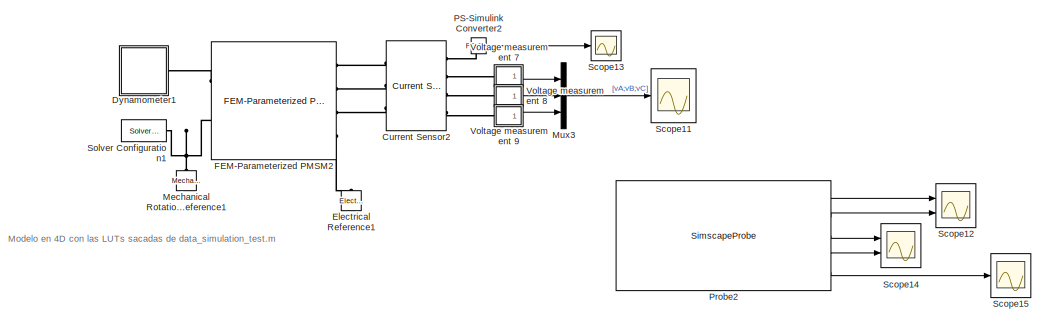
[diagram: root canvas - part 1/2, top right region]
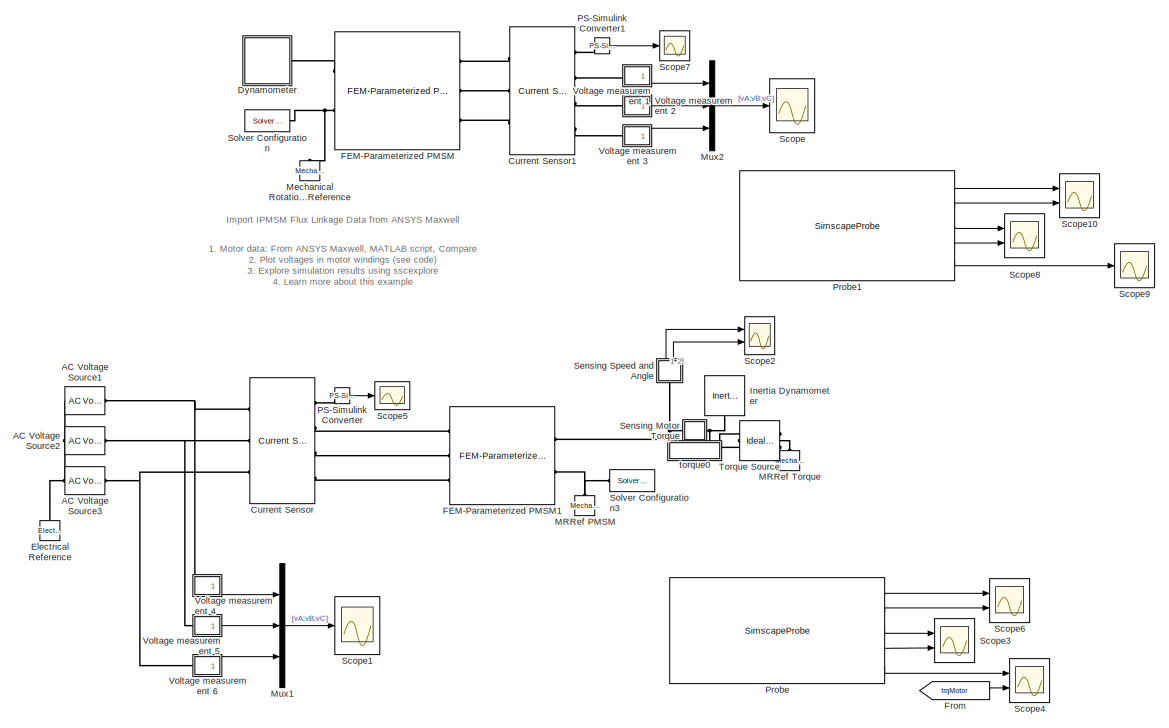
[diagram: root canvas - part 2/2, left side, full height]
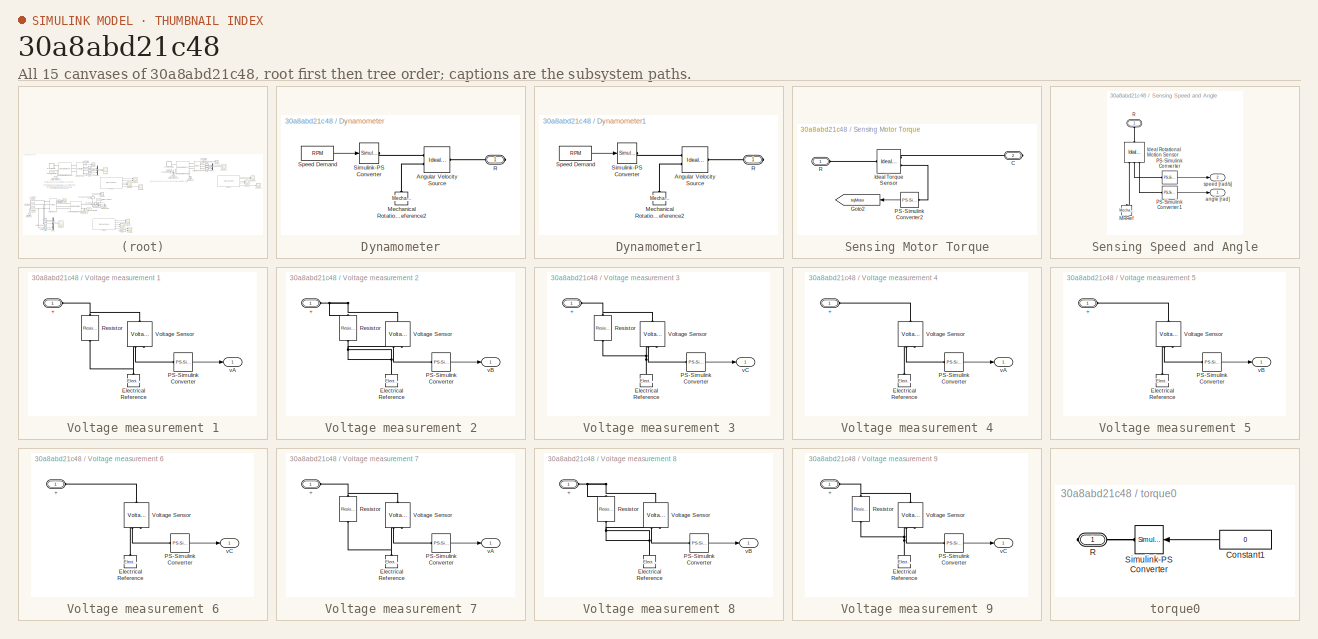
[diagram: thumbnail index - all 15 canvases of the model, root first then tree order]
MODEL slx_30a8abd21c48
KIND model
CONFIG AbsTol = 1e-3
CONFIG EnableMultiTasking = off
CONFIG FixedStep = auto
CONFIG MaxStep = auto
CONFIG MinStep = auto
CONFIG PreLoadFcn = % Load flux linkage data\nee_ece_table\nRPM = 7200;\nRload = 1e6;
CONFIG RelTol = 1e-3
CONFIG SampleTimeConstraint = Unconstrained
CONFIG SolverName = VariableStepAuto
CONFIG StartTime = 0.0
CONFIG StopFcn = ee_addSimlogTimeStamp(bdroot)
CONFIG StopTime = 0.01
BLOCK [Reference] AC Voltage Source1  REF=fl_lib/Electrical/Electrical Sources/AC Voltage Source
  Commented = on
  Ports = [0, 0, 0, 0, 0, 1, 1]
  SourceBlock = fl_lib/Electrical/Electrical Sources/AC Voltage Source
  SourceProductBaseCode = SS
  SourceType = AC Voltage Source
BLOCK [Reference] AC Voltage Source2  REF=fl_lib/Electrical/Electrical Sources/AC Voltage Source
  Commented = on
  Ports = [0, 0, 0, 0, 0, 1, 1]
  SourceBlock = fl_lib/Electrical/Electrical Sources/AC Voltage Source
  SourceProductBaseCode = SS
  SourceType = AC Voltage Source
BLOCK [Reference] AC Voltage Source3  REF=fl_lib/Electrical/Electrical Sources/AC Voltage Source
  Commented = on
  Ports = [0, 0, 0, 0, 0, 1, 1]
  SourceBlock = fl_lib/Electrical/Electrical Sources/AC Voltage Source
  SourceProductBaseCode = SS
  SourceType = AC Voltage Source
BLOCK [Reference] Current Sensor  REF=ee_lib/Sensors &
Transducers/Current Sensor
(Three-Phase)
  Commented = on
  Ports = [0, 0, 0, 0, 0, 3, 4]
  SourceBlock = ee_lib/Sensors &\nTransducers/Current Sensor\n(Three-Phase)
  SourceProductBaseCode = PS
  SourceType = Current Sensor\n(Three-Phase)
BLOCK [Reference] Current Sensor1  REF=ee_lib/Sensors &
Transducers/Current Sensor
(Three-Phase)
  Ports = [0, 0, 0, 0, 0, 3, 4]
  SourceBlock = ee_lib/Sensors &\nTransducers/Current Sensor\n(Three-Phase)
  SourceProductBaseCode = PS
  SourceType = Current Sensor\n(Three-Phase)
BLOCK [Reference] Current Sensor2  REF=ee_lib/Sensors &
Transducers/Current Sensor
(Three-Phase)
  Commented = on
  Ports = [0, 0, 0, 0, 0, 3, 4]
  SourceBlock = ee_lib/Sensors &\nTransducers/Current Sensor\n(Three-Phase)
  SourceProductBaseCode = PS
  SourceType = Current Sensor\n(Three-Phase)
BLOCK [SubSystem] Dynamometer
  Ports = [0, 0, 0, 0, 0, 0, 1]
  RequestExecContextInheritance = off
BLOCK [Reference] Dynamometer/Angular Velocity Source  REF=fl_lib/Mechanical/Mechanical Sources/Ideal Angular
Velocity Source
  Ports = [0, 0, 0, 0, 0, 1, 2]
  SourceBlock = fl_lib/Mechanical/Mechanical Sources/Ideal Angular\nVelocity Source
  SourceProductBaseCode = SS
  SourceType = Ideal Angular\nVelocity Source
BLOCK [Reference] Dynamometer/Mechanical Rotational Reference2  REF=fl_lib/Mechanical/Rotational Elements/Mechanical
Rotational Reference
  NameLocation = right
  Ports = [0, 0, 0, 0, 0, 1]
  SourceBlock = fl_lib/Mechanical/Rotational Elements/Mechanical\nRotational Reference
  SourceProductBaseCode = SS
  SourceType = Mechanical\nRotational Reference
BLOCK [PMIOPort] Dynamometer/R
  Side = Right
BLOCK [Reference] Dynamometer/Simulink-PS Converter  REF=nesl_utility/Simulink-PS
Converter
  NameLocation = top
  Ports = [1, 0, 0, 0, 0, 0, 1]
  SourceBlock = nesl_utility/Simulink-PS\nConverter
  SourceProductBaseCode = PW,SS
  SourceType = Simulink-PS\nConverter
BLOCK [Constant] Dynamometer/Speed Demand
  Value = RPM
BLOCK [SubSystem] Dynamometer1
  Commented = on
  Ports = [0, 0, 0, 0, 0, 0, 1]
  RequestExecContextInheritance = off
BLOCK [Reference] Dynamometer1/Angular Velocity Source  REF=fl_lib/Mechanical/Mechanical Sources/Ideal Angular
Velocity Source
  Ports = [0, 0, 0, 0, 0, 1, 2]
  SourceBlock = fl_lib/Mechanical/Mechanical Sources/Ideal Angular\nVelocity Source
  SourceProductBaseCode = SS
  SourceType = Ideal Angular\nVelocity Source
BLOCK [Reference] Dynamometer1/Mechanical Rotational Reference2  REF=fl_lib/Mechanical/Rotational Elements/Mechanical
Rotational Reference
  NameLocation = right
  Ports = [0, 0, 0, 0, 0, 1]
  SourceBlock = fl_lib/Mechanical/Rotational Elements/Mechanical\nRotational Reference
  SourceProductBaseCode = SS
  SourceType = Mechanical\nRotational Reference
BLOCK [PMIOPort] Dynamometer1/R
  Side = Right
BLOCK [Reference] Dynamometer1/Simulink-PS Converter  REF=nesl_utility/Simulink-PS
Converter
  NameLocation = top
  Ports = [1, 0, 0, 0, 0, 0, 1]
  SourceBlock = nesl_utility/Simulink-PS\nConverter
  SourceProductBaseCode = PW,SS
  SourceType = Simulink-PS\nConverter
BLOCK [Constant] Dynamometer1/Speed Demand
  Value = RPM
BLOCK [Reference] Electrical Reference  REF=fl_lib/Electrical/Electrical Elements/Electrical Reference
  Commented = on
  NameLocation = right
  Ports = [0, 0, 0, 0, 0, 1]
  SourceBlock = fl_lib/Electrical/Electrical Elements/Electrical Reference
  SourceProductBaseCode = SS
  SourceType = Electrical Reference
BLOCK [Reference] Electrical Reference1  REF=fl_lib/Electrical/Electrical Elements/Electrical Reference
  Commented = on
  NameLocation = right
  Ports = [0, 0, 0, 0, 0, 1]
  SourceBlock = fl_lib/Electrical/Electrical Elements/Electrical Reference
  SourceProductBaseCode = SS
  SourceType = Electrical Reference
BLOCK [Reference] FEM-Parameterized PMSM  REF=ee_lib/Electromechanical/Permanent Magnet/FEM-Parameterized
PMSM
  Ports = [0, 0, 0, 0, 0, 3, 2]
  SourceBlock = ee_lib/Electromechanical/Permanent Magnet/FEM-Parameterized\nPMSM
  SourceProductBaseCode = PS
  SourceType = FEM-Parameterized\nPMSM
BLOCK [Reference] FEM-Parameterized PMSM1  REF=ee_lib/Electromechanical/Permanent Magnet/FEM-Parameterized
PMSM
  Commented = on
  Ports = [0, 0, 0, 0, 0, 3, 2]
  SourceBlock = ee_lib/Electromechanical/Permanent Magnet/FEM-Parameterized\nPMSM
  SourceProductBaseCode = PS
  SourceType = FEM-Parameterized\nPMSM
BLOCK [Reference] FEM-Parameterized PMSM2  REF=ee_lib/Electromechanical/Permanent Magnet/FEM-Parameterized
PMSM
  Commented = on
  Ports = [0, 0, 0, 0, 0, 4, 2]
  SourceBlock = ee_lib/Electromechanical/Permanent Magnet/FEM-Parameterized\nPMSM
  SourceProductBaseCode = PS
  SourceType = FEM-Parameterized\nPMSM
BLOCK [From] From
  Commented = on
  GotoTag = trqMotor
  TagVisibility = global
BLOCK [Reference] Inertia Dynamometer  REF=fl_lib/Mechanical/Rotational Elements/Inertia
  Commented = on
  NameLocation = right
  Ports = [0, 0, 0, 0, 0, 1]
  SourceBlock = fl_lib/Mechanical/Rotational Elements/Inertia
  SourceProductBaseCode = SS
  SourceType = Inertia
BLOCK [Reference] MRRef PMSM  REF=fl_lib/Mechanical/Rotational Elements/Mechanical
Rotational Reference
  Commented = on
  NameLocation = left
  Ports = [0, 0, 0, 0, 0, 1]
  SourceBlock = fl_lib/Mechanical/Rotational Elements/Mechanical\nRotational Reference
  SourceProductBaseCode = SS
  SourceType = Mechanical\nRotational Reference
BLOCK [Reference] MRRef Torque  REF=fl_lib/Mechanical/Rotational Elements/Mechanical
Rotational Reference
  Commented = on
  NameLocation = right
  Ports = [0, 0, 0, 0, 0, 1]
  SourceBlock = fl_lib/Mechanical/Rotational Elements/Mechanical\nRotational Reference
  SourceProductBaseCode = SS
  SourceType = Mechanical\nRotational Reference
BLOCK [Reference] Mechanical Rotational Reference  REF=fl_lib/Mechanical/Rotational Elements/Mechanical
Rotational Reference
  NameLocation = right
  Ports = [0, 0, 0, 0, 0, 1]
  SourceBlock = fl_lib/Mechanical/Rotational Elements/Mechanical\nRotational Reference
  SourceProductBaseCode = SS
  SourceType = Mechanical\nRotational Reference
BLOCK [Reference] Mechanical Rotational Reference1  REF=fl_lib/Mechanical/Rotational Elements/Mechanical
Rotational Reference
  Commented = on
  NameLocation = right
  Ports = [0, 0, 0, 0, 0, 1]
  SourceBlock = fl_lib/Mechanical/Rotational Elements/Mechanical\nRotational Reference
  SourceProductBaseCode = SS
  SourceType = Mechanical\nRotational Reference
BLOCK [Mux] Mux1
  Commented = on
  DisplayOption = bar
  Inputs = 3
  Ports = [3, 1]
BLOCK [Mux] Mux2
  DisplayOption = bar
  Inputs = 3
  Ports = [3, 1]
BLOCK [Mux] Mux3
  Commented = on
  DisplayOption = bar
  Inputs = 3
  Ports = [3, 1]
BLOCK [Reference] PS-Simulink Converter  REF=nesl_utility/PS-Simulink
Converter
  Commented = on
  Ports = [0, 1, 0, 0, 0, 1]
  SourceBlock = nesl_utility/PS-Simulink\nConverter
  SourceProductBaseCode = PW,SS
  SourceType = PS-Simulink\nConverter
BLOCK [Reference] PS-Simulink Converter1  REF=nesl_utility/PS-Simulink
Converter
  Ports = [0, 1, 0, 0, 0, 1]
  SourceBlock = nesl_utility/PS-Simulink\nConverter
  SourceProductBaseCode = PW,SS
  SourceType = PS-Simulink\nConverter
BLOCK [Reference] PS-Simulink Converter2  REF=nesl_utility/PS-Simulink
Converter
  Commented = on
  Ports = [0, 1, 0, 0, 0, 1]
  SourceBlock = nesl_utility/PS-Simulink\nConverter
  SourceProductBaseCode = PW,SS
  SourceType = PS-Simulink\nConverter
BLOCK [SimscapeProbe] Probe
  BoundBlock = 144
  Commented = on
  Ports = [0, 5]
  Variables = {angular_position, angular_velocity, i_d, i_q, torque}
BLOCK [SimscapeProbe] Probe1
  BoundBlock = 1
  Ports = [0, 5]
  Variables = {angular_position, angular_velocity, i_d, i_q, torque}
BLOCK [SimscapeProbe] Probe2
  BoundBlock = 266
  Commented = on
  Ports = [0, 5]
  Variables = {angular_position, angular_velocity, i_d, i_q, torque}
BLOCK [Scope] Scope
  Floating = off
  NumInputPorts = 1
  Ports = [1]
  ScopeSpecificationString = Simulink.scopes.TimeScopeBlockCfg('CurrentConfiguration', extmgr.ConfigurationSet(extmgr.Configuration('Core','General UI',true),extmgr.Configuration('Core','Source UI',true),extmgr.Configuration('Sources','WiredSimulink',true,'DataLogging',true,'DataLoggingVariableName','phase_voltages','DataLoggingSaveFormat','StructureWithTime'),extmgr.Configuration('Visuals','Time Domain',true,'SerializedDispl...<+1624ch>
BLOCK [Scope] Scope1
  Commented = on
  Floating = off
  NumInputPorts = 1
  Ports = [1]
  ScopeSpecificationString = Simulink.scopes.TimeScopeBlockCfg('CurrentConfiguration', extmgr.ConfigurationSet(extmgr.Configuration('Core','General UI',true),extmgr.Configuration('Core','Source UI',true),extmgr.Configuration('Sources','WiredSimulink',true,'DataLoggingVariableName','ScopeData1'),extmgr.Configuration('Visuals','Time Domain',true,'SerializedDisplays',{struct('MinYLimReal','-125.00000','MaxYLimReal','125.00000','...<+1911ch>
BLOCK [Scope] Scope10
  Floating = off
  NumInputPorts = 2
  Ports = [2]
  ScopeSpecificationString = Simulink.scopes.TimeScopeBlockCfg('CurrentConfiguration', extmgr.ConfigurationSet(extmgr.Configuration('Core','General UI',true),extmgr.Configuration('Core','Source UI',true),extmgr.Configuration('Sources','WiredSimulink',true,'DataLoggingVariableName','angr_speedr','DataLogging',true,'DataLoggingSaveFormat','StructureWithTime'),extmgr.Configuration('Visuals','Time Domain',true,'SerializedDisplays...<+2275ch>
BLOCK [Scope] Scope11
  Commented = on
  Floating = off
  NumInputPorts = 1
  Ports = [1]
  ScopeSpecificationString = Simulink.scopes.TimeScopeBlockCfg('CurrentConfiguration', extmgr.ConfigurationSet(extmgr.Configuration('Core','General UI',true),extmgr.Configuration('Core','Source UI',true),extmgr.Configuration('Sources','WiredSimulink',true,'DataLogging',true,'DataLoggingVariableName','ScopeData1','DataLoggingSaveFormat','StructureWithTime'),extmgr.Configuration('Visuals','Time Domain',true,'SerializedDisplays'...<+1642ch>
BLOCK [Scope] Scope12
  Commented = on
  Floating = off
  NumInputPorts = 2
  Ports = [2]
  ScopeSpecificationString = Simulink.scopes.TimeScopeBlockCfg('CurrentConfiguration', extmgr.ConfigurationSet(extmgr.Configuration('Core','General UI',true),extmgr.Configuration('Core','Source UI',true),extmgr.Configuration('Sources','WiredSimulink',true,'DataLoggingVariableName','ScopeData2','DataLogging',true,'DataLoggingSaveFormat','StructureWithTime'),extmgr.Configuration('Visuals','Time Domain',true,'SerializedDisplays'...<+2274ch>
BLOCK [Scope] Scope13
  Commented = on
  Floating = off
  NumInputPorts = 1
  Ports = [1]
  ScopeSpecificationString = Simulink.scopes.TimeScopeBlockCfg('CurrentConfiguration', extmgr.ConfigurationSet(extmgr.Configuration('Core','General UI',true),extmgr.Configuration('Core','Source UI',true),extmgr.Configuration('Sources','WiredSimulink',true,'DataLoggingVariableName','ScopeData3','DataLogging',true,'DataLoggingSaveFormat','StructureWithTime'),extmgr.Configuration('Visuals','Time Domain',true,'SerializedDisplays'...<+2006ch>
BLOCK [Scope] Scope14
  Commented = on
  Floating = off
  NumInputPorts = 2
  Ports = [2]
  ScopeSpecificationString = Simulink.scopes.TimeScopeBlockCfg('CurrentConfiguration', extmgr.ConfigurationSet(extmgr.Configuration('Core','General UI',true),extmgr.Configuration('Core','Source UI',true),extmgr.Configuration('Sources','WiredSimulink',true,'DataLoggingVariableName','ScopeData4','DataLogging',true,'DataLoggingSaveFormat','StructureWithTime'),extmgr.Configuration('Visuals','Time Domain',true,'SerializedDisplays'...<+2170ch>
BLOCK [Scope] Scope15
  Commented = on
  Floating = off
  NumInputPorts = 1
  Ports = [1]
  ScopeSpecificationString = Simulink.scopes.TimeScopeBlockCfg('CurrentConfiguration', extmgr.ConfigurationSet(extmgr.Configuration('Core','General UI',true),extmgr.Configuration('Core','Source UI',true),extmgr.Configuration('Sources','WiredSimulink',true,'DataLoggingVariableName','ScopeData5','DataLogging',true,'DataLoggingSaveFormat','StructureWithTime'),extmgr.Configuration('Visuals','Time Domain',true,'SerializedDisplays'...<+1656ch>
BLOCK [Scope] Scope2
  Commented = on
  Floating = off
  NumInputPorts = 2
  Ports = [2]
  ScopeSpecificationString = Simulink.scopes.TimeScopeBlockCfg('CurrentConfiguration', extmgr.ConfigurationSet(extmgr.Configuration('Core','General UI',true),extmgr.Configuration('Core','Source UI',true),extmgr.Configuration('Sources','WiredSimulink',true,'DataLoggingVariableName','ScopeData2'),extmgr.Configuration('Visuals','Time Domain',true,'SerializedDisplays',{struct('MinYLimReal','-45.16107','MaxYLimReal','406.44964','Y...<+2148ch>
BLOCK [Scope] Scope3
  Commented = on
  Floating = off
  NumInputPorts = 2
  Ports = [2]
  ScopeSpecificationString = Simulink.scopes.TimeScopeBlockCfg('CurrentConfiguration', extmgr.ConfigurationSet(extmgr.Configuration('Core','General UI',true),extmgr.Configuration('Core','Source UI',true),extmgr.Configuration('Sources','WiredSimulink',true,'DataLoggingVariableName','ScopeData3'),extmgr.Configuration('Visuals','Time Domain',true,'SerializedDisplays',{struct('MinYLimReal','-304.97527','MaxYLimReal','33.88614','Y...<+2110ch>
BLOCK [Scope] Scope4
  Commented = on
  Floating = off
  NumInputPorts = 2
  Ports = [2]
  ScopeSpecificationString = Simulink.scopes.TimeScopeBlockCfg('CurrentConfiguration', extmgr.ConfigurationSet(extmgr.Configuration('Core','General UI',true),extmgr.Configuration('Core','Source UI',true),extmgr.Configuration('Sources','WiredSimulink',true,'DataLoggingVariableName','ScopeData4'),extmgr.Configuration('Visuals','Time Domain',true,'SerializedDisplays',{struct('MinYLimReal','-242.1657','MaxYLimReal','273.02753','Y...<+2125ch>
BLOCK [Scope] Scope5
  Commented = on
  Floating = off
  NumInputPorts = 1
  Ports = [1]
  ScopeSpecificationString = Simulink.scopes.TimeScopeBlockCfg('CurrentConfiguration', extmgr.ConfigurationSet(extmgr.Configuration('Core','General UI',true),extmgr.Configuration('Core','Source UI',true),extmgr.Configuration('Sources','WiredSimulink',true,'DataLoggingVariableName','ScopeData5'),extmgr.Configuration('Visuals','Time Domain',true,'SerializedDisplays',{struct('MinYLimReal','-264.39732','MaxYLimReal','330.61492','...<+1972ch>
BLOCK [Scope] Scope6
  Commented = on
  Floating = off
  NumInputPorts = 2
  Ports = [2]
  ScopeSpecificationString = Simulink.scopes.TimeScopeBlockCfg('CurrentConfiguration', extmgr.ConfigurationSet(extmgr.Configuration('Core','General UI',true),extmgr.Configuration('Core','Source UI',true),extmgr.Configuration('Sources','WiredSimulink',true,'DataLoggingVariableName','ScopeData6'),extmgr.Configuration('Visuals','Time Domain',true,'SerializedDisplays',{struct('MinYLimReal','-2679.3679','MaxYLimReal','24114.31107'...<+2116ch>
BLOCK [Scope] Scope7
  Floating = off
  NumInputPorts = 1
  Ports = [1]
  ScopeSpecificationString = Simulink.scopes.TimeScopeBlockCfg('CurrentConfiguration', extmgr.ConfigurationSet(extmgr.Configuration('Core','General UI',true),extmgr.Configuration('Core','Source UI',true),extmgr.Configuration('Sources','WiredSimulink',true,'DataLoggingVariableName','phase_currents','DataLogging',true,'DataLoggingSaveFormat','StructureWithTime'),extmgr.Configuration('Visuals','Time Domain',true,'SerializedDispl...<+1671ch>
BLOCK [Scope] Scope8
  Floating = off
  NumInputPorts = 2
  Ports = [2]
  ScopeSpecificationString = Simulink.scopes.TimeScopeBlockCfg('CurrentConfiguration', extmgr.ConfigurationSet(extmgr.Configuration('Core','General UI',true),extmgr.Configuration('Core','Source UI',true),extmgr.Configuration('Sources','WiredSimulink',true,'DataLoggingVariableName','dq_currents','DataLogging',true,'DataLoggingSaveFormat','StructureWithTime'),extmgr.Configuration('Visuals','Time Domain',true,'SerializedDisplays...<+2172ch>
BLOCK [Scope] Scope9
  Floating = off
  NumInputPorts = 1
  Ports = [1]
  ScopeSpecificationString = Simulink.scopes.TimeScopeBlockCfg('CurrentConfiguration', extmgr.ConfigurationSet(extmgr.Configuration('Core','General UI',true),extmgr.Configuration('Core','Source UI',true),extmgr.Configuration('Sources','WiredSimulink',true,'DataLoggingVariableName','electrical_torque','DataLogging',true,'DataLoggingSaveFormat','StructureWithTime'),extmgr.Configuration('Visuals','Time Domain',true,'SerializedDi...<+1641ch>
BLOCK [SubSystem] Sensing Motor Torque
  Commented = on
  Ports = [0, 0, 0, 0, 0, 1, 1]
  RequestExecContextInheritance = off
BLOCK [PMIOPort] Sensing Motor Torque/C
  Port = 2
  Side = Right
BLOCK [Goto] Sensing Motor Torque/Goto2
  GotoTag = trqMotor
  TagVisibility = global
BLOCK [Reference] Sensing Motor Torque/Ideal Torque Sensor  REF=fl_lib/Mechanical/Mechanical Sensors/Ideal Torque Sensor
  Ports = [0, 0, 0, 0, 0, 1, 2]
  SourceBlock = fl_lib/Mechanical/Mechanical Sensors/Ideal Torque Sensor
  SourceProductBaseCode = SS
  SourceType = Ideal Torque Sensor
BLOCK [Reference] Sensing Motor Torque/PS-Simulink Converter2  REF=nesl_utility/PS-Simulink
Converter
  NameLocation = top
  Ports = [0, 1, 0, 0, 0, 1]
  SourceBlock = nesl_utility/PS-Simulink\nConverter
  SourceProductBaseCode = PW,SS
  SourceType = PS-Simulink\nConverter
BLOCK [PMIOPort] Sensing Motor Torque/R
  Side = Left
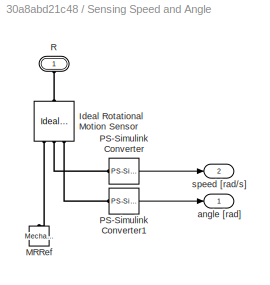
BLOCK [SubSystem] Sensing Speed and Angle
  Commented = on
  NameLocation = right
  Ports = [0, 2, 0, 0, 0, 1]
  RequestExecContextInheritance = off
BLOCK [Reference] Sensing Speed and Angle/Ideal Rotational Motion Sensor  REF=fl_lib/Mechanical/Mechanical Sensors/Ideal Rotational
Motion Sensor
  NameLocation = right
  Ports = [0, 0, 0, 0, 0, 1, 3]
  SourceBlock = fl_lib/Mechanical/Mechanical Sensors/Ideal Rotational\nMotion Sensor
  SourceProductBaseCode = SS
  SourceType = Ideal Rotational\nMotion Sensor
BLOCK [Reference] Sensing Speed and Angle/MRRef  REF=fl_lib/Mechanical/Rotational Elements/Mechanical
Rotational Reference
  NameLocation = right
  Ports = [0, 0, 0, 0, 0, 1]
  SourceBlock = fl_lib/Mechanical/Rotational Elements/Mechanical\nRotational Reference
  SourceProductBaseCode = SS
  SourceType = Mechanical\nRotational Reference
BLOCK [Reference] Sensing Speed and Angle/PS-Simulink Converter  REF=nesl_utility/PS-Simulink
Converter
  Ports = [0, 1, 0, 0, 0, 1]
  SourceBlock = nesl_utility/PS-Simulink\nConverter
  SourceProductBaseCode = PW,SS
  SourceType = PS-Simulink\nConverter
BLOCK [Reference] Sensing Speed and Angle/PS-Simulink Converter1  REF=nesl_utility/PS-Simulink
Converter
  Ports = [0, 1, 0, 0, 0, 1]
  SourceBlock = nesl_utility/PS-Simulink\nConverter
  SourceProductBaseCode = PW,SS
  SourceType = PS-Simulink\nConverter
BLOCK [PMIOPort] Sensing Speed and Angle/R
  NameLocation = right
  Side = Left
BLOCK [Outport] Sensing Speed and Angle/angle [rad]
  VectorParamsAs1DForOutWhenUnconnected = off
BLOCK [Outport] Sensing Speed and Angle/speed [rad//s]
  Port = 2
  VectorParamsAs1DForOutWhenUnconnected = off
BLOCK [Reference] Solver Configuration  REF=nesl_utility/Solver
Configuration
  NameLocation = top
  Ports = [0, 0, 0, 0, 0, 0, 1]
  SourceBlock = nesl_utility/Solver\nConfiguration
  SourceProductBaseCode = PW,SS
  SourceType = Solver\nConfiguration
BLOCK [Reference] Solver Configuration1  REF=nesl_utility/Solver
Configuration
  Commented = on
  NameLocation = top
  Ports = [0, 0, 0, 0, 0, 0, 1]
  SourceBlock = nesl_utility/Solver\nConfiguration
  SourceProductBaseCode = PW,SS
  SourceType = Solver\nConfiguration
BLOCK [Reference] Solver Configuration3  REF=nesl_utility/Solver
Configuration
  Commented = on
  NameLocation = top
  Ports = [0, 0, 0, 0, 0, 0, 1]
  SourceBlock = nesl_utility/Solver\nConfiguration
  SourceProductBaseCode = PW,SS
  SourceType = Solver\nConfiguration
BLOCK [Reference] Torque Source  REF=fl_lib/Mechanical/Mechanical Sources/Ideal Torque Source
  Commented = on
  NameLocation = top
  Ports = [0, 0, 0, 0, 0, 1, 2]
  SourceBlock = fl_lib/Mechanical/Mechanical Sources/Ideal Torque Source
  SourceProductBaseCode = SS
  SourceType = Ideal Torque Source
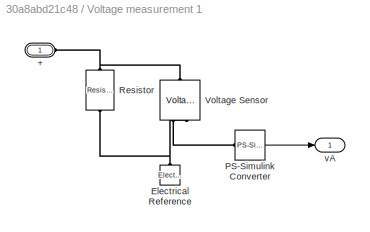
BLOCK [SubSystem] Voltage measurement 1
  NameLocation = top
  Ports = [0, 1, 0, 0, 0, 1]
  RequestExecContextInheritance = off
BLOCK [PMIOPort] Voltage measurement 1/+
  Side = Left
BLOCK [Reference] Voltage measurement 1/Electrical Reference  REF=fl_lib/Electrical/Electrical Elements/Electrical Reference
  NameLocation = right
  Ports = [0, 0, 0, 0, 0, 1]
  SourceBlock = fl_lib/Electrical/Electrical Elements/Electrical Reference
  SourceProductBaseCode = SS
  SourceType = Electrical Reference
BLOCK [Reference] Voltage measurement 1/PS-Simulink Converter  REF=nesl_utility/PS-Simulink
Converter
  Ports = [0, 1, 0, 0, 0, 1]
  SourceBlock = nesl_utility/PS-Simulink\nConverter
  SourceProductBaseCode = PW,SS
  SourceType = PS-Simulink\nConverter
BLOCK [Reference] Voltage measurement 1/Resistor  REF=fl_lib/Electrical/Electrical Elements/Resistor
  NameLocation = left
  Ports = [0, 0, 0, 0, 0, 1, 1]
  SourceBlock = fl_lib/Electrical/Electrical Elements/Resistor
  SourceProductBaseCode = SS
  SourceType = Resistor
BLOCK [Reference] Voltage measurement 1/Voltage Sensor  REF=fl_lib/Electrical/Electrical Sensors/Voltage Sensor
  NameLocation = left
  Ports = [0, 0, 0, 0, 0, 1, 2]
  SourceBlock = fl_lib/Electrical/Electrical Sensors/Voltage Sensor
  SourceProductBaseCode = SS
  SourceType = Voltage Sensor
BLOCK [Outport] Voltage measurement 1/vA
  VectorParamsAs1DForOutWhenUnconnected = off
BLOCK [SubSystem] Voltage measurement 2
  NameLocation = top
  Ports = [0, 1, 0, 0, 0, 1]
  RequestExecContextInheritance = off
BLOCK [PMIOPort] Voltage measurement 2/+
  Side = Left
BLOCK [Reference] Voltage measurement 2/Electrical Reference  REF=fl_lib/Electrical/Electrical Elements/Electrical Reference
  NameLocation = right
  Ports = [0, 0, 0, 0, 0, 1]
  SourceBlock = fl_lib/Electrical/Electrical Elements/Electrical Reference
  SourceProductBaseCode = SS
  SourceType = Electrical Reference
BLOCK [Reference] Voltage measurement 2/PS-Simulink Converter  REF=nesl_utility/PS-Simulink
Converter
  Ports = [0, 1, 0, 0, 0, 1]
  SourceBlock = nesl_utility/PS-Simulink\nConverter
  SourceProductBaseCode = PW,SS
  SourceType = PS-Simulink\nConverter
BLOCK [Reference] Voltage measurement 2/Resistor  REF=fl_lib/Electrical/Electrical Elements/Resistor
  NameLocation = left
  Ports = [0, 0, 0, 0, 0, 1, 1]
  SourceBlock = fl_lib/Electrical/Electrical Elements/Resistor
  SourceProductBaseCode = SS
  SourceType = Resistor
BLOCK [Reference] Voltage measurement 2/Voltage Sensor  REF=fl_lib/Electrical/Electrical Sensors/Voltage Sensor
  NameLocation = left
  Ports = [0, 0, 0, 0, 0, 1, 2]
  SourceBlock = fl_lib/Electrical/Electrical Sensors/Voltage Sensor
  SourceProductBaseCode = SS
  SourceType = Voltage Sensor
BLOCK [Outport] Voltage measurement 2/vB
  VectorParamsAs1DForOutWhenUnconnected = off
BLOCK [SubSystem] Voltage measurement 3
  NameLocation = top
  Ports = [0, 1, 0, 0, 0, 1]
  RequestExecContextInheritance = off
BLOCK [PMIOPort] Voltage measurement 3/+
  Side = Left
BLOCK [Reference] Voltage measurement 3/Electrical Reference  REF=fl_lib/Electrical/Electrical Elements/Electrical Reference
  NameLocation = right
  Ports = [0, 0, 0, 0, 0, 1]
  SourceBlock = fl_lib/Electrical/Electrical Elements/Electrical Reference
  SourceProductBaseCode = SS
  SourceType = Electrical Reference
BLOCK [Reference] Voltage measurement 3/PS-Simulink Converter  REF=nesl_utility/PS-Simulink
Converter
  Ports = [0, 1, 0, 0, 0, 1]
  SourceBlock = nesl_utility/PS-Simulink\nConverter
  SourceProductBaseCode = PW,SS
  SourceType = PS-Simulink\nConverter
BLOCK [Reference] Voltage measurement 3/Resistor  REF=fl_lib/Electrical/Electrical Elements/Resistor
  NameLocation = left
  Ports = [0, 0, 0, 0, 0, 1, 1]
  SourceBlock = fl_lib/Electrical/Electrical Elements/Resistor
  SourceProductBaseCode = SS
  SourceType = Resistor
BLOCK [Reference] Voltage measurement 3/Voltage Sensor  REF=fl_lib/Electrical/Electrical Sensors/Voltage Sensor
  NameLocation = left
  Ports = [0, 0, 0, 0, 0, 1, 2]
  SourceBlock = fl_lib/Electrical/Electrical Sensors/Voltage Sensor
  SourceProductBaseCode = SS
  SourceType = Voltage Sensor
BLOCK [Outport] Voltage measurement 3/vC
  VectorParamsAs1DForOutWhenUnconnected = off
BLOCK [SubSystem] Voltage measurement 4
  Commented = on
  NameLocation = top
  Ports = [0, 1, 0, 0, 0, 1]
  RequestExecContextInheritance = off
BLOCK [PMIOPort] Voltage measurement 4/+
  Side = Left
BLOCK [Reference] Voltage measurement 4/Electrical Reference  REF=fl_lib/Electrical/Electrical Elements/Electrical Reference
  NameLocation = right
  Ports = [0, 0, 0, 0, 0, 1]
  SourceBlock = fl_lib/Electrical/Electrical Elements/Electrical Reference
  SourceProductBaseCode = SS
  SourceType = Electrical Reference
BLOCK [Reference] Voltage measurement 4/PS-Simulink Converter  REF=nesl_utility/PS-Simulink
Converter
  Ports = [0, 1, 0, 0, 0, 1]
  SourceBlock = nesl_utility/PS-Simulink\nConverter
  SourceProductBaseCode = PW,SS
  SourceType = PS-Simulink\nConverter
BLOCK [Reference] Voltage measurement 4/Voltage Sensor  REF=fl_lib/Electrical/Electrical Sensors/Voltage Sensor
  NameLocation = left
  Ports = [0, 0, 0, 0, 0, 1, 2]
  SourceBlock = fl_lib/Electrical/Electrical Sensors/Voltage Sensor
  SourceProductBaseCode = SS
  SourceType = Voltage Sensor
BLOCK [Outport] Voltage measurement 4/vA
  VectorParamsAs1DForOutWhenUnconnected = off
BLOCK [SubSystem] Voltage measurement 5
  Commented = on
  NameLocation = top
  Ports = [0, 1, 0, 0, 0, 1]
  RequestExecContextInheritance = off
BLOCK [PMIOPort] Voltage measurement 5/+
  Side = Left
BLOCK [Reference] Voltage measurement 5/Electrical Reference  REF=fl_lib/Electrical/Electrical Elements/Electrical Reference
  NameLocation = right
  Ports = [0, 0, 0, 0, 0, 1]
  SourceBlock = fl_lib/Electrical/Electrical Elements/Electrical Reference
  SourceProductBaseCode = SS
  SourceType = Electrical Reference
BLOCK [Reference] Voltage measurement 5/PS-Simulink Converter  REF=nesl_utility/PS-Simulink
Converter
  Ports = [0, 1, 0, 0, 0, 1]
  SourceBlock = nesl_utility/PS-Simulink\nConverter
  SourceProductBaseCode = PW,SS
  SourceType = PS-Simulink\nConverter
BLOCK [Reference] Voltage measurement 5/Voltage Sensor  REF=fl_lib/Electrical/Electrical Sensors/Voltage Sensor
  NameLocation = left
  Ports = [0, 0, 0, 0, 0, 1, 2]
  SourceBlock = fl_lib/Electrical/Electrical Sensors/Voltage Sensor
  SourceProductBaseCode = SS
  SourceType = Voltage Sensor
BLOCK [Outport] Voltage measurement 5/vB
  VectorParamsAs1DForOutWhenUnconnected = off
BLOCK [SubSystem] Voltage measurement 6
  Commented = on
  NameLocation = top
  Ports = [0, 1, 0, 0, 0, 1]
  RequestExecContextInheritance = off
BLOCK [PMIOPort] Voltage measurement 6/+
  Side = Left
BLOCK [Reference] Voltage measurement 6/Electrical Reference  REF=fl_lib/Electrical/Electrical Elements/Electrical Reference
  NameLocation = right
  Ports = [0, 0, 0, 0, 0, 1]
  SourceBlock = fl_lib/Electrical/Electrical Elements/Electrical Reference
  SourceProductBaseCode = SS
  SourceType = Electrical Reference
BLOCK [Reference] Voltage measurement 6/PS-Simulink Converter  REF=nesl_utility/PS-Simulink
Converter
  Ports = [0, 1, 0, 0, 0, 1]
  SourceBlock = nesl_utility/PS-Simulink\nConverter
  SourceProductBaseCode = PW,SS
  SourceType = PS-Simulink\nConverter
BLOCK [Reference] Voltage measurement 6/Voltage Sensor  REF=fl_lib/Electrical/Electrical Sensors/Voltage Sensor
  NameLocation = left
  Ports = [0, 0, 0, 0, 0, 1, 2]
  SourceBlock = fl_lib/Electrical/Electrical Sensors/Voltage Sensor
  SourceProductBaseCode = SS
  SourceType = Voltage Sensor
BLOCK [Outport] Voltage measurement 6/vC
  VectorParamsAs1DForOutWhenUnconnected = off
BLOCK [SubSystem] Voltage measurement 7
  Commented = on
  NameLocation = top
  Ports = [0, 1, 0, 0, 0, 1]
  RequestExecContextInheritance = off
BLOCK [PMIOPort] Voltage measurement 7/+
  Side = Left
BLOCK [Reference] Voltage measurement 7/Electrical Reference  REF=fl_lib/Electrical/Electrical Elements/Electrical Reference
  NameLocation = right
  Ports = [0, 0, 0, 0, 0, 1]
  SourceBlock = fl_lib/Electrical/Electrical Elements/Electrical Reference
  SourceProductBaseCode = SS
  SourceType = Electrical Reference
BLOCK [Reference] Voltage measurement 7/PS-Simulink Converter  REF=nesl_utility/PS-Simulink
Converter
  Ports = [0, 1, 0, 0, 0, 1]
  SourceBlock = nesl_utility/PS-Simulink\nConverter
  SourceProductBaseCode = PW,SS
  SourceType = PS-Simulink\nConverter
BLOCK [Reference] Voltage measurement 7/Resistor  REF=fl_lib/Electrical/Electrical Elements/Resistor
  NameLocation = left
  Ports = [0, 0, 0, 0, 0, 1, 1]
  SourceBlock = fl_lib/Electrical/Electrical Elements/Resistor
  SourceProductBaseCode = SS
  SourceType = Resistor
BLOCK [Reference] Voltage measurement 7/Voltage Sensor  REF=fl_lib/Electrical/Electrical Sensors/Voltage Sensor
  NameLocation = left
  Ports = [0, 0, 0, 0, 0, 1, 2]
  SourceBlock = fl_lib/Electrical/Electrical Sensors/Voltage Sensor
  SourceProductBaseCode = SS
  SourceType = Voltage Sensor
BLOCK [Outport] Voltage measurement 7/vA
  VectorParamsAs1DForOutWhenUnconnected = off
BLOCK [SubSystem] Voltage measurement 8
  Commented = on
  NameLocation = top
  Ports = [0, 1, 0, 0, 0, 1]
  RequestExecContextInheritance = off
BLOCK [PMIOPort] Voltage measurement 8/+
  Side = Left
BLOCK [Reference] Voltage measurement 8/Electrical Reference  REF=fl_lib/Electrical/Electrical Elements/Electrical Reference
  NameLocation = right
  Ports = [0, 0, 0, 0, 0, 1]
  SourceBlock = fl_lib/Electrical/Electrical Elements/Electrical Reference
  SourceProductBaseCode = SS
  SourceType = Electrical Reference
BLOCK [Reference] Voltage measurement 8/PS-Simulink Converter  REF=nesl_utility/PS-Simulink
Converter
  Ports = [0, 1, 0, 0, 0, 1]
  SourceBlock = nesl_utility/PS-Simulink\nConverter
  SourceProductBaseCode = PW,SS
  SourceType = PS-Simulink\nConverter
BLOCK [Reference] Voltage measurement 8/Resistor  REF=fl_lib/Electrical/Electrical Elements/Resistor
  NameLocation = left
  Ports = [0, 0, 0, 0, 0, 1, 1]
  SourceBlock = fl_lib/Electrical/Electrical Elements/Resistor
  SourceProductBaseCode = SS
  SourceType = Resistor
BLOCK [Reference] Voltage measurement 8/Voltage Sensor  REF=fl_lib/Electrical/Electrical Sensors/Voltage Sensor
  NameLocation = left
  Ports = [0, 0, 0, 0, 0, 1, 2]
  SourceBlock = fl_lib/Electrical/Electrical Sensors/Voltage Sensor
  SourceProductBaseCode = SS
  SourceType = Voltage Sensor
BLOCK [Outport] Voltage measurement 8/vB
  VectorParamsAs1DForOutWhenUnconnected = off
BLOCK [SubSystem] Voltage measurement 9
  Commented = on
  NameLocation = top
  Ports = [0, 1, 0, 0, 0, 1]
  RequestExecContextInheritance = off
BLOCK [PMIOPort] Voltage measurement 9/+
  Side = Left
BLOCK [Reference] Voltage measurement 9/Electrical Reference  REF=fl_lib/Electrical/Electrical Elements/Electrical Reference
  NameLocation = right
  Ports = [0, 0, 0, 0, 0, 1]
  SourceBlock = fl_lib/Electrical/Electrical Elements/Electrical Reference
  SourceProductBaseCode = SS
  SourceType = Electrical Reference
BLOCK [Reference] Voltage measurement 9/PS-Simulink Converter  REF=nesl_utility/PS-Simulink
Converter
  Ports = [0, 1, 0, 0, 0, 1]
  SourceBlock = nesl_utility/PS-Simulink\nConverter
  SourceProductBaseCode = PW,SS
  SourceType = PS-Simulink\nConverter
BLOCK [Reference] Voltage measurement 9/Resistor  REF=fl_lib/Electrical/Electrical Elements/Resistor
  NameLocation = left
  Ports = [0, 0, 0, 0, 0, 1, 1]
  SourceBlock = fl_lib/Electrical/Electrical Elements/Resistor
  SourceProductBaseCode = SS
  SourceType = Resistor
BLOCK [Reference] Voltage measurement 9/Voltage Sensor  REF=fl_lib/Electrical/Electrical Sensors/Voltage Sensor
  NameLocation = left
  Ports = [0, 0, 0, 0, 0, 1, 2]
  SourceBlock = fl_lib/Electrical/Electrical Sensors/Voltage Sensor
  SourceProductBaseCode = SS
  SourceType = Voltage Sensor
BLOCK [Outport] Voltage measurement 9/vC
  VectorParamsAs1DForOutWhenUnconnected = off
BLOCK [SubSystem] torque0
  Commented = on
  NameLocation = top
  Ports = [0, 0, 0, 0, 0, 0, 1]
  RequestExecContextInheritance = off
BLOCK [Constant] torque0/Constant1
  NameLocation = top
  Value = 0
BLOCK [PMIOPort] torque0/R
  Side = Right
BLOCK [Reference] torque0/Simulink-PS Converter  REF=nesl_utility/Simulink-PS
Converter
  Ports = [1, 0, 0, 0, 0, 0, 1]
  SourceBlock = nesl_utility/Simulink-PS\nConverter
  SourceProductBaseCode = PW,SS
  SourceType = Simulink-PS\nConverter
ANNOTATION (root): Modelo en 4D con las LUTs sacadas de data_simulation_test.m
ANNOTATION (root): 1. Motor data: From ANSYS Maxwell , MATLAB script , Compare 2. Plot voltages in motor windings ( see code ) 3. Explore simulation results using sscexplore 4. Learn more about this example
ANNOTATION (root): Import IPMSM Flux Linkage Data from ANSYS Maxwell
LINE Dynamometer/Speed Demand:1 -> Dynamometer/Simulink-PS Converter:1
LINE Dynamometer1/Speed Demand:1 -> Dynamometer1/Simulink-PS Converter:1
LINE From:1 -> Scope4:2
LINE Mux1:1 -> Scope1:1
LINE Mux2:1 -> Scope:1
LINE Mux3:1 -> Scope11:1
LINE PS-Simulink Converter1:1 -> Scope7:1
LINE PS-Simulink Converter2:1 -> Scope13:1
LINE PS-Simulink Converter:1 -> Scope5:1
LINE Probe1:1 -> Scope10:1
LINE Probe1:2 -> Scope10:2
LINE Probe1:3 -> Scope8:1
LINE Probe1:4 -> Scope8:2
LINE Probe1:5 -> Scope9:1
LINE Probe2:1 -> Scope12:1
LINE Probe2:2 -> Scope12:2
LINE Probe2:3 -> Scope14:1
LINE Probe2:4 -> Scope14:2
LINE Probe2:5 -> Scope15:1
LINE Probe:1 -> Scope6:1
LINE Probe:2 -> Scope6:2
LINE Probe:3 -> Scope3:1
LINE Probe:4 -> Scope3:2
LINE Probe:5 -> Scope4:1
LINE Sensing Motor Torque/PS-Simulink Converter2:1 -> Sensing Motor Torque/Goto2:1
LINE Sensing Speed and Angle/PS-Simulink Converter1:1 -> Sensing Speed and Angle/angle [rad]:1
LINE Sensing Speed and Angle/PS-Simulink Converter:1 -> Sensing Speed and Angle/speed [rad//s]:1
LINE Sensing Speed and Angle:1 -> Scope2:1
LINE Sensing Speed and Angle:2 -> Scope2:2
LINE Voltage measurement 1/PS-Simulink Converter:1 -> Voltage measurement 1/vA:1
LINE Voltage measurement 1:1 -> Mux2:1
LINE Voltage measurement 2/PS-Simulink Converter:1 -> Voltage measurement 2/vB:1
LINE Voltage measurement 2:1 -> Mux2:2
LINE Voltage measurement 3/PS-Simulink Converter:1 -> Voltage measurement 3/vC:1
LINE Voltage measurement 3:1 -> Mux2:3
LINE Voltage measurement 4/PS-Simulink Converter:1 -> Voltage measurement 4/vA:1
LINE Voltage measurement 4:1 -> Mux1:1
LINE Voltage measurement 5/PS-Simulink Converter:1 -> Voltage measurement 5/vB:1
LINE Voltage measurement 5:1 -> Mux1:2
LINE Voltage measurement 6/PS-Simulink Converter:1 -> Voltage measurement 6/vC:1
LINE Voltage measurement 6:1 -> Mux1:3
LINE Voltage measurement 7/PS-Simulink Converter:1 -> Voltage measurement 7/vA:1
LINE Voltage measurement 7:1 -> Mux3:1
LINE Voltage measurement 8/PS-Simulink Converter:1 -> Voltage measurement 8/vB:1
LINE Voltage measurement 8:1 -> Mux3:2
LINE Voltage measurement 9/PS-Simulink Converter:1 -> Voltage measurement 9/vC:1
LINE Voltage measurement 9:1 -> Mux3:3
LINE torque0/Constant1:1 -> torque0/Simulink-PS Converter:1
PNET net1: AC Voltage Source1:LConn1 -- Current Sensor:LConn1 -- Voltage measurement 4:LConn1
PNET net2: AC Voltage Source1:RConn1 -- AC Voltage Source2:RConn1 -- AC Voltage Source3:RConn1 -- Electrical Reference:LConn1
PNET net3: AC Voltage Source2:LConn1 -- Current Sensor:LConn2 -- Voltage measurement 5:LConn1
PNET net4: AC Voltage Source3:LConn1 -- Current Sensor:LConn3 -- Voltage measurement 6:LConn1
PLINE Current Sensor1:LConn1 -- FEM-Parameterized PMSM:LConn1
PLINE Current Sensor1:LConn2 -- FEM-Parameterized PMSM:LConn2
PLINE Current Sensor1:LConn3 -- FEM-Parameterized PMSM:LConn3
PLINE Current Sensor1:RConn1 -- PS-Simulink Converter1:LConn1
PLINE Current Sensor1:RConn2 -- Voltage measurement 1:LConn1
PLINE Current Sensor1:RConn3 -- Voltage measurement 2:LConn1
PLINE Current Sensor1:RConn4 -- Voltage measurement 3:LConn1
PLINE Current Sensor2:LConn1 -- FEM-Parameterized PMSM2:LConn1
PLINE Current Sensor2:LConn2 -- FEM-Parameterized PMSM2:LConn2
PLINE Current Sensor2:LConn3 -- FEM-Parameterized PMSM2:LConn3
PLINE Current Sensor2:RConn1 -- PS-Simulink Converter2:LConn1
PLINE Current Sensor2:RConn2 -- Voltage measurement 7:LConn1
PLINE Current Sensor2:RConn3 -- Voltage measurement 8:LConn1
PLINE Current Sensor2:RConn4 -- Voltage measurement 9:LConn1
PLINE Current Sensor:RConn1 -- PS-Simulink Converter:LConn1
PLINE Current Sensor:RConn2 -- FEM-Parameterized PMSM1:LConn1
PLINE Current Sensor:RConn3 -- FEM-Parameterized PMSM1:LConn2
PLINE Current Sensor:RConn4 -- FEM-Parameterized PMSM1:LConn3
PLINE Dynamometer/Angular Velocity Source:LConn1 -- Dynamometer/R:RConn1
PLINE Dynamometer/Angular Velocity Source:RConn1 -- Dynamometer/Simulink-PS Converter:RConn1
PLINE Dynamometer/Angular Velocity Source:RConn2 -- Dynamometer/Mechanical Rotational Reference2:LConn1
PLINE Dynamometer1/Angular Velocity Source:LConn1 -- Dynamometer1/R:RConn1
PLINE Dynamometer1/Angular Velocity Source:RConn1 -- Dynamometer1/Simulink-PS Converter:RConn1
PLINE Dynamometer1/Angular Velocity Source:RConn2 -- Dynamometer1/Mechanical Rotational Reference2:LConn1
PLINE Dynamometer1:RConn1 -- FEM-Parameterized PMSM2:RConn1
PLINE Dynamometer:RConn1 -- FEM-Parameterized PMSM:RConn1
PLINE Electrical Reference1:LConn1 -- FEM-Parameterized PMSM2:LConn4
PNET net5: FEM-Parameterized PMSM1:RConn1 -- Sensing Motor Torque:LConn1 -- Sensing Speed and Angle:LConn1
PNET net6: FEM-Parameterized PMSM1:RConn2 -- MRRef PMSM:LConn1 -- Solver Configuration3:RConn1
PNET net7: FEM-Parameterized PMSM2:RConn2 -- Mechanical Rotational Reference1:LConn1 -- Solver Configuration1:RConn1
PNET net8: FEM-Parameterized PMSM:RConn2 -- Mechanical Rotational Reference:LConn1 -- Solver Configuration:RConn1
PNET net9: Inertia Dynamometer:LConn1 -- Sensing Motor Torque:RConn1 -- Torque Source:RConn2
PLINE MRRef Torque:LConn1 -- Torque Source:LConn1
PLINE Sensing Motor Torque/C:RConn1 -- Sensing Motor Torque/Ideal Torque Sensor:RConn1
PLINE Sensing Motor Torque/Ideal Torque Sensor:LConn1 -- Sensing Motor Torque/R:RConn1
PLINE Sensing Motor Torque/Ideal Torque Sensor:RConn2 -- Sensing Motor Torque/PS-Simulink Converter2:LConn1
PLINE Sensing Speed and Angle/Ideal Rotational Motion Sensor:LConn1 -- Sensing Speed and Angle/R:RConn1
PLINE Sensing Speed and Angle/Ideal Rotational Motion Sensor:RConn1 -- Sensing Speed and Angle/MRRef:LConn1
PLINE Sensing Speed and Angle/Ideal Rotational Motion Sensor:RConn2 -- Sensing Speed and Angle/PS-Simulink Converter:LConn1
PLINE Sensing Speed and Angle/Ideal Rotational Motion Sensor:RConn3 -- Sensing Speed and Angle/PS-Simulink Converter1:LConn1
PLINE Torque Source:RConn1 -- torque0:RConn1
PNET net10: Voltage measurement 1/+:RConn1 -- Voltage measurement 1/Resistor:LConn1 -- Voltage measurement 1/Voltage Sensor:LConn1
PNET net11: Voltage measurement 1/Electrical Reference:LConn1 -- Voltage measurement 1/Resistor:RConn1 -- Voltage measurement 1/Voltage Sensor:RConn2
PLINE Voltage measurement 1/PS-Simulink Converter:LConn1 -- Voltage measurement 1/Voltage Sensor:RConn1
PNET net12: Voltage measurement 2/+:RConn1 -- Voltage measurement 2/Resistor:LConn1 -- Voltage measurement 2/Voltage Sensor:LConn1
PNET net13: Voltage measurement 2/Electrical Reference:LConn1 -- Voltage measurement 2/Resistor:RConn1 -- Voltage measurement 2/Voltage Sensor:RConn2
PLINE Voltage measurement 2/PS-Simulink Converter:LConn1 -- Voltage measurement 2/Voltage Sensor:RConn1
PNET net14: Voltage measurement 3/+:RConn1 -- Voltage measurement 3/Resistor:LConn1 -- Voltage measurement 3/Voltage Sensor:LConn1
PNET net15: Voltage measurement 3/Electrical Reference:LConn1 -- Voltage measurement 3/Resistor:RConn1 -- Voltage measurement 3/Voltage Sensor:RConn2
PLINE Voltage measurement 3/PS-Simulink Converter:LConn1 -- Voltage measurement 3/Voltage Sensor:RConn1
PLINE Voltage measurement 4/+:RConn1 -- Voltage measurement 4/Voltage Sensor:LConn1
PLINE Voltage measurement 4/Electrical Reference:LConn1 -- Voltage measurement 4/Voltage Sensor:RConn2
PLINE Voltage measurement 4/PS-Simulink Converter:LConn1 -- Voltage measurement 4/Voltage Sensor:RConn1
PLINE Voltage measurement 5/+:RConn1 -- Voltage measurement 5/Voltage Sensor:LConn1
PLINE Voltage measurement 5/Electrical Reference:LConn1 -- Voltage measurement 5/Voltage Sensor:RConn2
PLINE Voltage measurement 5/PS-Simulink Converter:LConn1 -- Voltage measurement 5/Voltage Sensor:RConn1
PLINE Voltage measurement 6/+:RConn1 -- Voltage measurement 6/Voltage Sensor:LConn1
PLINE Voltage measurement 6/Electrical Reference:LConn1 -- Voltage measurement 6/Voltage Sensor:RConn2
PLINE Voltage measurement 6/PS-Simulink Converter:LConn1 -- Voltage measurement 6/Voltage Sensor:RConn1
PNET net16: Voltage measurement 7/+:RConn1 -- Voltage measurement 7/Resistor:LConn1 -- Voltage measurement 7/Voltage Sensor:LConn1
PNET net17: Voltage measurement 7/Electrical Reference:LConn1 -- Voltage measurement 7/Resistor:RConn1 -- Voltage measurement 7/Voltage Sensor:RConn2
PLINE Voltage measurement 7/PS-Simulink Converter:LConn1 -- Voltage measurement 7/Voltage Sensor:RConn1
PNET net18: Voltage measurement 8/+:RConn1 -- Voltage measurement 8/Resistor:LConn1 -- Voltage measurement 8/Voltage Sensor:LConn1
PNET net19: Voltage measurement 8/Electrical Reference:LConn1 -- Voltage measurement 8/Resistor:RConn1 -- Voltage measurement 8/Voltage Sensor:RConn2
PLINE Voltage measurement 8/PS-Simulink Converter:LConn1 -- Voltage measurement 8/Voltage Sensor:RConn1
PNET net20: Voltage measurement 9/+:RConn1 -- Voltage measurement 9/Resistor:LConn1 -- Voltage measurement 9/Voltage Sensor:LConn1
PNET net21: Voltage measurement 9/Electrical Reference:LConn1 -- Voltage measurement 9/Resistor:RConn1 -- Voltage measurement 9/Voltage Sensor:RConn2
PLINE Voltage measurement 9/PS-Simulink Converter:LConn1 -- Voltage measurement 9/Voltage Sensor:RConn1
PLINE torque0/R:RConn1 -- torque0/Simulink-PS Converter:RConn1
note: PNET lines group multi-terminal physical nets as a canonical sorted terminal list (undirected conserving connections); 2-terminal nets keep the pairwise PLINE form
